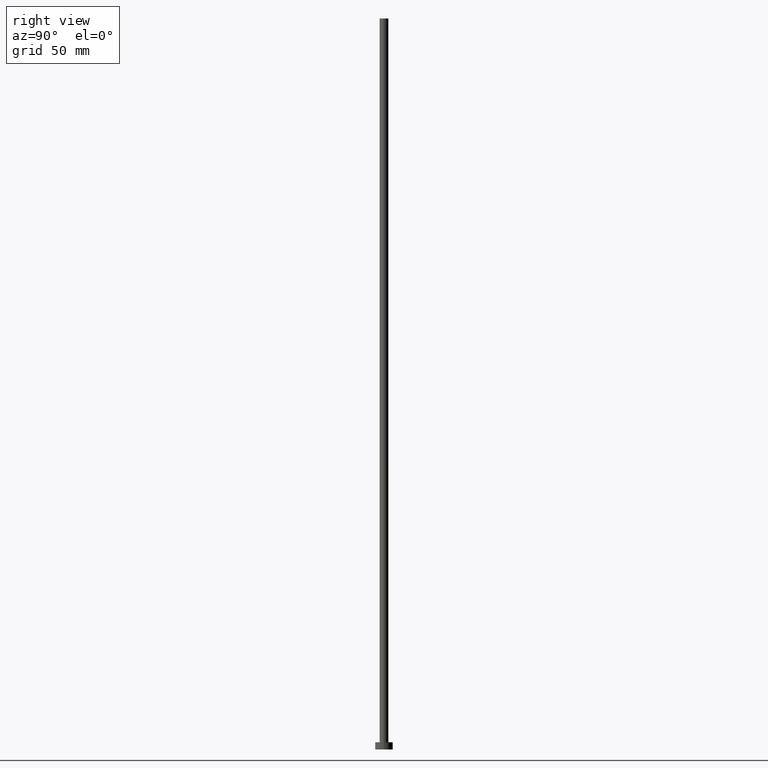
[diagram: clean part render]
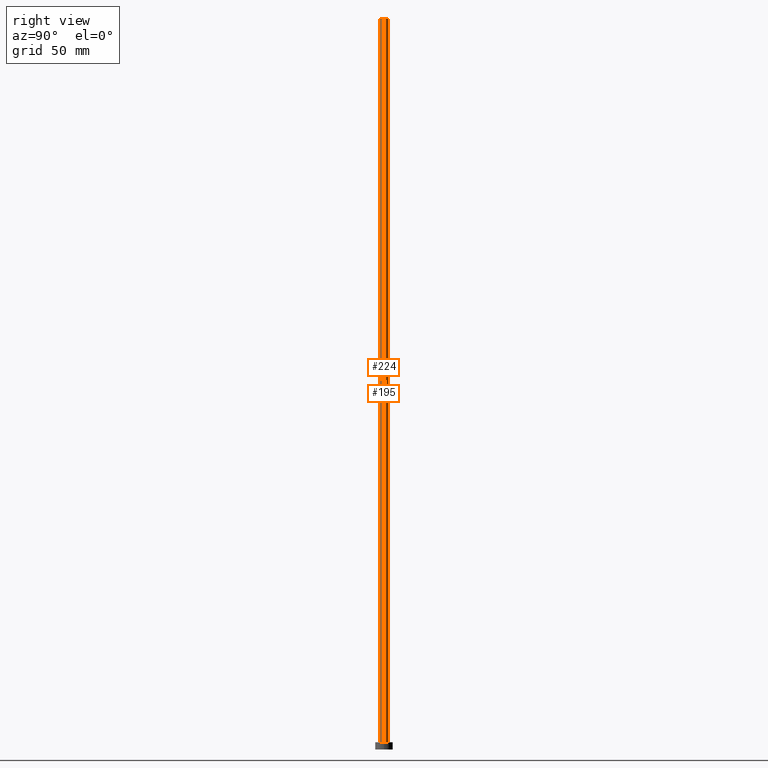
[diagram: same view with one multi-face feature highlighted, each face labeled with its STEP entity id]
A machine part, right view. The highlighted faces form ONE feature: a constant-radius fillet chain: 2 tangent blend faces with common blend radius 3 mm. The faces share edges in the B-rep.
Their STEP definitions:
[1] entity #224 (Cylinder):
#6 = DIRECTION ( 'NONE',  ( 0.000000000000000000, 0.000000000000000000, 1.000000000000000000 ) ) ;
#7 = LINE ( 'NONE', #216, #95 ) ;
#10 = VERTEX_POINT ( 'NONE', #139 ) ;
#19 = CARTESIAN_POINT ( 'NONE',  ( -3.000000000000000444, 0.000000000000000000, 5.000000000000000000 ) ) ;
#21 = CIRCLE ( 'NONE', #252, 3.000000000000000444 ) ;
#34 = VERTEX_POINT ( 'NONE', #19 ) ;
#41 = DIRECTION ( 'NONE',  ( -0.000000000000000000, -0.000000000000000000, -1.000000000000000000 ) ) ;
#55 = CYLINDRICAL_SURFACE ( 'NONE', #124, 3.000000000000000444 ) ;
#59 = AXIS2_PLACEMENT_3D ( 'NONE', #138, #6, #80 ) ;
#60 = DIRECTION ( 'NONE',  ( 1.000000000000000000, 0.000000000000000000, 0.000000000000000000 ) ) ;
#69 = LINE ( 'NONE', #93, #131 ) ;
#77 = ORIENTED_EDGE ( 'NONE', *, *, #238, .F. ) ;
#79 = CIRCLE ( 'NONE', #59, 3.000000000000000444 ) ;
#80 = DIRECTION ( 'NONE',  ( 1.000000000000000000, 0.000000000000000000, 0.000000000000000000 ) ) ;
#81 = VERTEX_POINT ( 'NONE', #226 ) ;
#93 = CARTESIAN_POINT ( 'NONE',  ( -3.000000000000000444, 0.000000000000000000, 500.0000000000000000 ) ) ;
#94 = VERTEX_POINT ( 'NONE', #206 ) ;
#95 = VECTOR ( 'NONE', #41, 1000.000000000000000 ) ;
#96 = CARTESIAN_POINT ( 'NONE',  ( 0.000000000000000000, 0.000000000000000000, 500.0000000000000000 ) ) ;
#109 = DIRECTION ( 'NONE',  ( -0.000000000000000000, -0.000000000000000000, -1.000000000000000000 ) ) ;
#115 = CARTESIAN_POINT ( 'NONE',  ( 0.000000000000000000, 0.000000000000000000, 500.0000000000000000 ) ) ;
#124 = AXIS2_PLACEMENT_3D ( 'NONE', #115, #162, #227 ) ;
#131 = VECTOR ( 'NONE', #109, 1000.000000000000000 ) ;
#138 = CARTESIAN_POINT ( 'NONE',  ( 0.000000000000000000, 0.000000000000000000, 5.000000000000000000 ) ) ;
#139 = CARTESIAN_POINT ( 'NONE',  ( -3.000000000000000444, 0.000000000000000000, 500.0000000000000000 ) ) ;
#148 = EDGE_LOOP ( 'NONE', ( #157, #77, #254, #170 ) ) ;
#157 = ORIENTED_EDGE ( 'NONE', *, *, #247, .F. ) ;
#162 = DIRECTION ( 'NONE',  ( -0.000000000000000000, -0.000000000000000000, -1.000000000000000000 ) ) ;
#170 = ORIENTED_EDGE ( 'NONE', *, *, #243, .T. ) ;
#172 = EDGE_CURVE ( 'NONE', #10, #34, #69, .T. ) ;
#206 = CARTESIAN_POINT ( 'NONE',  ( 3.000000000000000444, 3.673940397442060361E-16, 5.000000000000000000 ) ) ;
#216 = CARTESIAN_POINT ( 'NONE',  ( 3.000000000000000444, 3.673940397442060361E-16, 500.0000000000000000 ) ) ;
#224 = ADVANCED_FACE ( 'NONE', ( #232 ), #55, .T. ) ;
#226 = CARTESIAN_POINT ( 'NONE',  ( 3.000000000000000444, 3.673940397442060361E-16, 500.0000000000000000 ) ) ;
#227 = DIRECTION ( 'NONE',  ( -1.000000000000000000, 0.000000000000000000, 0.000000000000000000 ) ) ;
#232 = FACE_OUTER_BOUND ( 'NONE', #148, .T. ) ;
#237 = DIRECTION ( 'NONE',  ( 0.000000000000000000, 0.000000000000000000, 1.000000000000000000 ) ) ;
#238 = EDGE_CURVE ( 'NONE', #10, #81, #21, .T. ) ;
#243 = EDGE_CURVE ( 'NONE', #34, #94, #79, .T. ) ;
#247 = EDGE_CURVE ( 'NONE', #81, #94, #7, .T. ) ;
#252 = AXIS2_PLACEMENT_3D ( 'NONE', #96, #237, #60 ) ;
#254 = ORIENTED_EDGE ( 'NONE', *, *, #172, .T. ) ;
[2] entity #195 (Cylinder):
#7 = LINE ( 'NONE', #216, #95 ) ;
#8 = ORIENTED_EDGE ( 'NONE', *, *, #247, .T. ) ;
#10 = VERTEX_POINT ( 'NONE', #139 ) ;
#15 = AXIS2_PLACEMENT_3D ( 'NONE', #128, #73, #146 ) ;
#18 = CARTESIAN_POINT ( 'NONE',  ( 0.000000000000000000, 0.000000000000000000, 5.000000000000000000 ) ) ;
#19 = CARTESIAN_POINT ( 'NONE',  ( -3.000000000000000444, 0.000000000000000000, 5.000000000000000000 ) ) ;
#34 = VERTEX_POINT ( 'NONE', #19 ) ;
#36 = EDGE_CURVE ( 'NONE', #81, #10, #119, .T. ) ;
#41 = DIRECTION ( 'NONE',  ( -0.000000000000000000, -0.000000000000000000, -1.000000000000000000 ) ) ;
#54 = AXIS2_PLACEMENT_3D ( 'NONE', #18, #92, #181 ) ;
#69 = LINE ( 'NONE', #93, #131 ) ;
#71 = FACE_OUTER_BOUND ( 'NONE', #116, .T. ) ;
#73 = DIRECTION ( 'NONE',  ( -0.000000000000000000, -0.000000000000000000, -1.000000000000000000 ) ) ;
#81 = VERTEX_POINT ( 'NONE', #226 ) ;
#92 = DIRECTION ( 'NONE',  ( 0.000000000000000000, 0.000000000000000000, 1.000000000000000000 ) ) ;
#93 = CARTESIAN_POINT ( 'NONE',  ( -3.000000000000000444, 0.000000000000000000, 500.0000000000000000 ) ) ;
#94 = VERTEX_POINT ( 'NONE', #206 ) ;
#95 = VECTOR ( 'NONE', #41, 1000.000000000000000 ) ;
#97 = ORIENTED_EDGE ( 'NONE', *, *, #36, .F. ) ;
#106 = CARTESIAN_POINT ( 'NONE',  ( 0.000000000000000000, 0.000000000000000000, 500.0000000000000000 ) ) ;
#109 = DIRECTION ( 'NONE',  ( -0.000000000000000000, -0.000000000000000000, -1.000000000000000000 ) ) ;
#116 = EDGE_LOOP ( 'NONE', ( #97, #8, #242, #150 ) ) ;
#119 = CIRCLE ( 'NONE', #239, 3.000000000000000444 ) ;
#128 = CARTESIAN_POINT ( 'NONE',  ( 0.000000000000000000, 0.000000000000000000, 500.0000000000000000 ) ) ;
#131 = VECTOR ( 'NONE', #109, 1000.000000000000000 ) ;
#139 = CARTESIAN_POINT ( 'NONE',  ( -3.000000000000000444, 0.000000000000000000, 500.0000000000000000 ) ) ;
#143 = DIRECTION ( 'NONE',  ( 1.000000000000000000, 0.000000000000000000, 0.000000000000000000 ) ) ;
#145 = CYLINDRICAL_SURFACE ( 'NONE', #15, 3.000000000000000444 ) ;
#146 = DIRECTION ( 'NONE',  ( -1.000000000000000000, 0.000000000000000000, 0.000000000000000000 ) ) ;
#150 = ORIENTED_EDGE ( 'NONE', *, *, #172, .F. ) ;
#159 = CIRCLE ( 'NONE', #54, 3.000000000000000444 ) ;
#172 = EDGE_CURVE ( 'NONE', #10, #34, #69, .T. ) ;
#181 = DIRECTION ( 'NONE',  ( 1.000000000000000000, 0.000000000000000000, 0.000000000000000000 ) ) ;
#188 = EDGE_CURVE ( 'NONE', #94, #34, #159, .T. ) ;
#195 = ADVANCED_FACE ( 'NONE', ( #71 ), #145, .T. ) ;
#206 = CARTESIAN_POINT ( 'NONE',  ( 3.000000000000000444, 3.673940397442060361E-16, 5.000000000000000000 ) ) ;
#216 = CARTESIAN_POINT ( 'NONE',  ( 3.000000000000000444, 3.673940397442060361E-16, 500.0000000000000000 ) ) ;
#226 = CARTESIAN_POINT ( 'NONE',  ( 3.000000000000000444, 3.673940397442060361E-16, 500.0000000000000000 ) ) ;
#230 = DIRECTION ( 'NONE',  ( 0.000000000000000000, 0.000000000000000000, 1.000000000000000000 ) ) ;
#239 = AXIS2_PLACEMENT_3D ( 'NONE', #106, #230, #143 ) ;
#242 = ORIENTED_EDGE ( 'NONE', *, *, #188, .T. ) ;
#247 = EDGE_CURVE ( 'NONE', #81, #94, #7, .T. ) ;